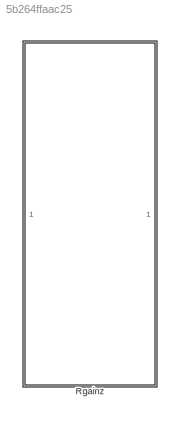
MODEL slx_5b264ffaac25
KIND library
CONFIG AbsTol = auto
CONFIG EnableMultiTasking = off
CONFIG FixedStep = auto
CONFIG MaxStep = auto
CONFIG MinStep = auto
CONFIG RelTol = 1e-3
CONFIG SampleTimeConstraint = Unconstrained
CONFIG SolverName = VariableStepAuto
CONFIG StartTime = 0.0
CONFIG StopTime = 10.0
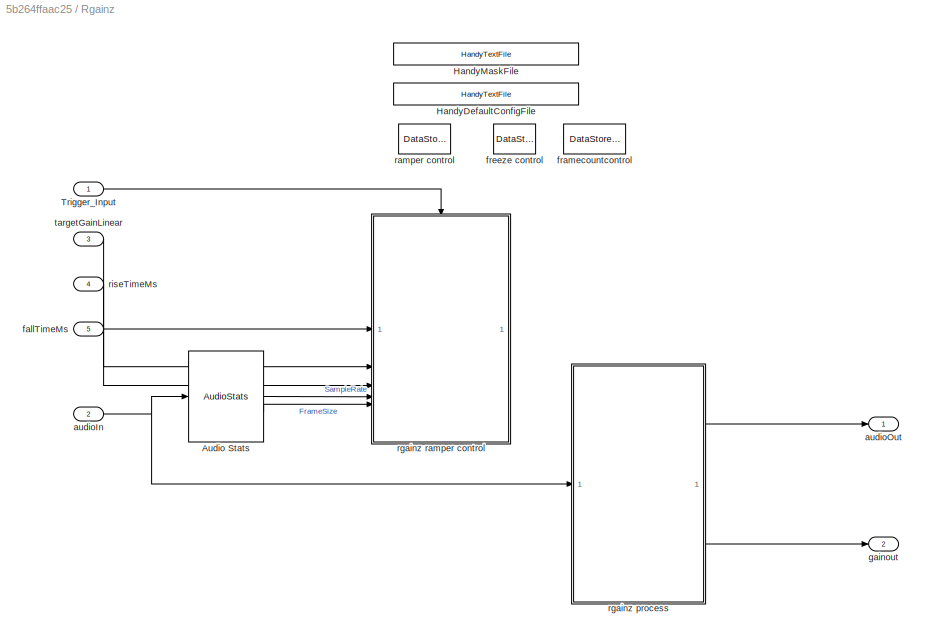
BLOCK [SubSystem] Rgainz
BLOCK [Reference] Rgainz/Audio Stats  REF=AudioStats/AudioStats
  SourceBlock = AudioStats/AudioStats
  SourceType = Talaria Audio Statistics
BLOCK [Reference] Rgainz/HandyDefaultConfigFile  REF=HandyTextFile/HandyTextFile
  SourceBlock = HandyTextFile/HandyTextFile
  SourceType = Talaria Handy Text File
BLOCK [Reference] Rgainz/HandyMaskFile  REF=HandyTextFile/HandyTextFile
  SourceBlock = HandyTextFile/HandyTextFile
  SourceType = Talaria Handy Text File
BLOCK [Inport] Rgainz/Trigger_Input
BLOCK [Inport] Rgainz/audioIn
  Port = 2
BLOCK [Outport] Rgainz/audioOut
  VectorParamsAs1DForOutWhenUnconnected = off
BLOCK [Inport] Rgainz/fallTimeMs
  Port = 5
BLOCK [DataStoreMemory] Rgainz/framecountcontrol
  DataStoreName = CurrentValue
  InitialValue = zeros(1,Config.NumRampers)
  OutDataTypeStr = Bus: rgainz_bus
  ShowAdditionalParam = off
  SignalType = real
BLOCK [DataStoreMemory] Rgainz/freeze control
  DataStoreName = Freeze
  InitialValue = zeros(1,Config.NumRampers)
  OutDataTypeStr = uint32
  ShowAdditionalParam = off
  SignalType = real
BLOCK [Outport] Rgainz/gainout
  Port = 2
  VectorParamsAs1DForOutWhenUnconnected = off
BLOCK [DataStoreMemory] Rgainz/ramper control
  DataStoreName = Rampers
  InitialValue = zeros(1,Config.NumRampers)
  OutDataTypeStr = Bus: rgainz_bus
  ShowAdditionalParam = off
  SignalType = real
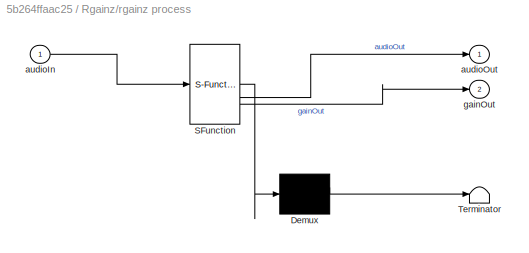
BLOCK [SubSystem] Rgainz/rgainz process
  ErrorFcn = Stateflow.Translate.translate
  PermitHierarchicalResolution = ExplicitOnly
  RTWSystemCode = Reusable function
  SFBlockType = MATLAB Function
  TreatAsAtomicUnit = on
BLOCK [Demux] Rgainz/rgainz process/ Demux 
  Outputs = 1
BLOCK [S-Function] Rgainz/rgainz process/ SFunction 
  EnableBusSupport = off
  FunctionName = sf_sfun
  Parameters = MaskNumRampers
  PortCounts = [1 3]
  SFcnIsStateOwnerBlock = off
  SFunctionDeploymentMode = off
  Tag = Stateflow S-Function 1
BLOCK [Terminator] Rgainz/rgainz process/ Terminator 
BLOCK [Inport] Rgainz/rgainz process/audioIn
BLOCK [Outport] Rgainz/rgainz process/audioOut
  VectorParamsAs1DForOutWhenUnconnected = off
BLOCK [Outport] Rgainz/rgainz process/gainOut
  Port = 2
  VectorParamsAs1DForOutWhenUnconnected = off
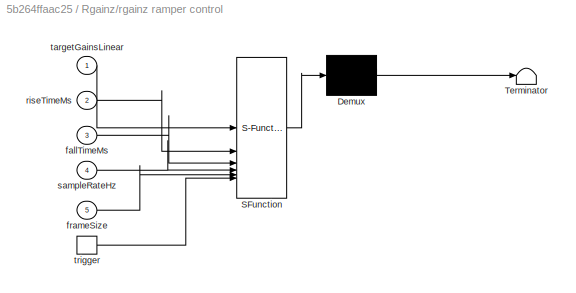
BLOCK [SubSystem] Rgainz/rgainz ramper control
  ErrorFcn = Stateflow.Translate.translate
  PermitHierarchicalResolution = ExplicitOnly
  RTWSystemCode = Reusable function
  SFBlockType = MATLAB Function
  TreatAsAtomicUnit = on
BLOCK [Demux] Rgainz/rgainz ramper control/ Demux 
  Outputs = 1
BLOCK [S-Function] Rgainz/rgainz ramper control/ SFunction 
  EnableBusSupport = off
  FunctionName = sf_sfun
  Parameters = MaskNumRampers
  PortCounts = [6 1]
  SFcnIsStateOwnerBlock = off
  SFunctionDeploymentMode = off
  Tag = Stateflow S-Function 4
BLOCK [Terminator] Rgainz/rgainz ramper control/ Terminator 
BLOCK [Inport] Rgainz/rgainz ramper control/fallTimeMs
  Port = 3
BLOCK [Inport] Rgainz/rgainz ramper control/frameSize
  Port = 5
BLOCK [Inport] Rgainz/rgainz ramper control/riseTimeMs
  Port = 2
BLOCK [Inport] Rgainz/rgainz ramper control/sampleRateHz
  Port = 4
BLOCK [Inport] Rgainz/rgainz ramper control/targetGainsLinear
BLOCK [TriggerPort] Rgainz/rgainz ramper control/trigger
  ShowOutputPort = on
  StatesWhenEnabling = held
  TriggerType = function-call
  VariantControl = Variant
BLOCK [Inport] Rgainz/riseTimeMs
  Port = 4
BLOCK [Inport] Rgainz/targetGainLinear
  Port = 3
LINE Rgainz/Audio Stats:1 -> Rgainz/rgainz ramper control:4
LINE Rgainz/Audio Stats:2 -> Rgainz/rgainz ramper control:5
LINE Rgainz/Trigger_Input:1 -> Rgainz/rgainz ramper control:trigger
NET Rgainz/audioIn:1 -> Rgainz/Audio Stats:1, Rgainz/rgainz process:1
LINE Rgainz/fallTimeMs:1 -> Rgainz/rgainz ramper control:3
LINE Rgainz/rgainz process:1 -> Rgainz/audioOut:1
LINE Rgainz/rgainz process:2 -> Rgainz/gainout:1
LINE Rgainz/riseTimeMs:1 -> Rgainz/rgainz ramper control:2
LINE Rgainz/targetGainLinear:1 -> Rgainz/rgainz ramper control:1
note: NET lines group one-source signal fan-out (src -> all destinations, sorted); 1:1 wires keep LINE
CHART Rgainz/rgainz process states=1 transitions=1
  STATE_LABEL 'eML_blk_kernel()'
  STATE_LABEL 'SCRIPT:\nfunction [audioOut, gainOut] = rgainz_process(audioIn, MaskNumRampers) \n    %#codegen\n    % Description: Check whether the block is in the Rise or Fall phase and\n    % apply the corresponding ramp coefficient.\n    \n    global Rampers;\n    global CurrentValue;\n\n    % Set the size of the output buffer\n    audioOut = coder.nullcopy(audioIn);\n    gainOut=single(zeros(1,MaskNumRampers));\n    ga...<+3601ch>'
CHART Rgainz/rgainz ramper control states=1 transitions=1
  STATE_LABEL 'eML_blk_kernel()'
  STATE_LABEL 'SCRIPT:\nfunction control(...\n     targetGainsLinear, riseTimeMs, fallTimeMs, ...\n     sampleRateHz, frameSize, MaskNumRampers)\n\nglobal Freeze;\nglobal Rampers;\nglobal CurrentValue;\n\nrgain_SILENT_GAIN = RgainBusUtil.GetSilentGainLinear();\n\n% Get the sizes of the provided target and time specifications\nnumGains = numel(targetGainsLinear);\n\n% Step 1: FREEZE the gain ramper so that we can perform calcu...<+3608ch>'
CHART  states=0 transitions=0
CHART  states=0 transitions=0
